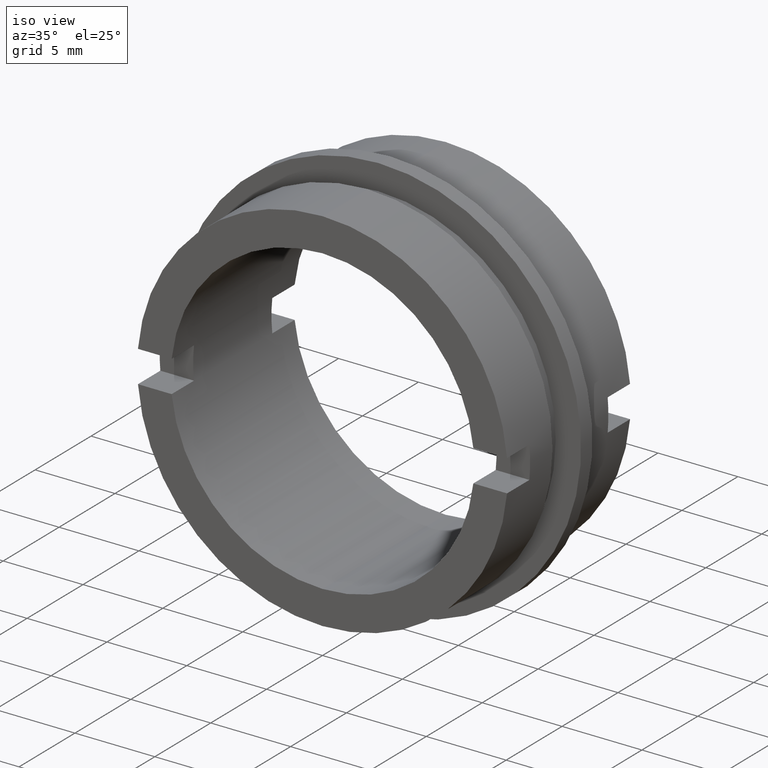
[diagram: clean part render]
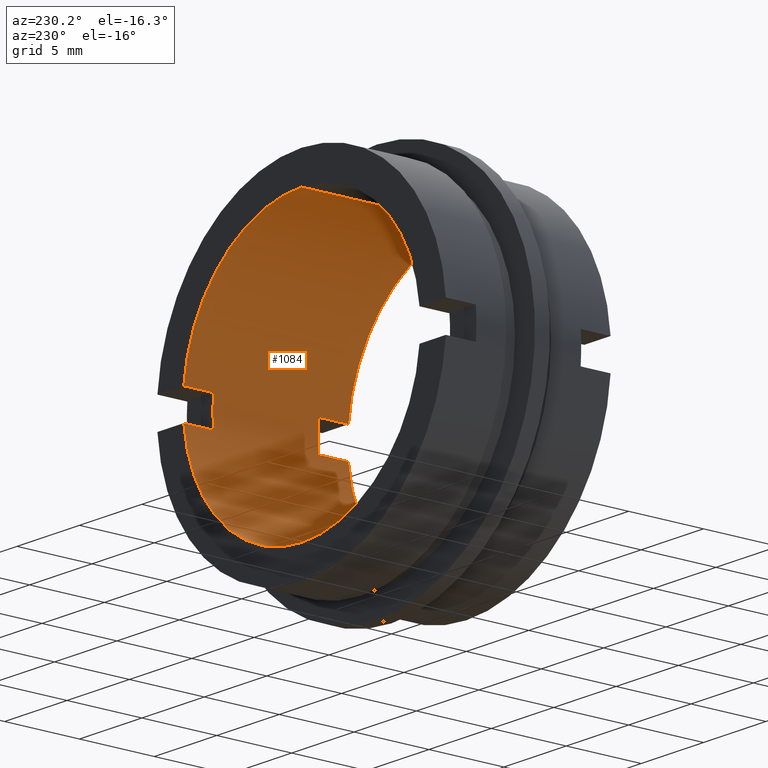
[diagram: tour spotlight — one face highlighted and labeled with its STEP entity id]
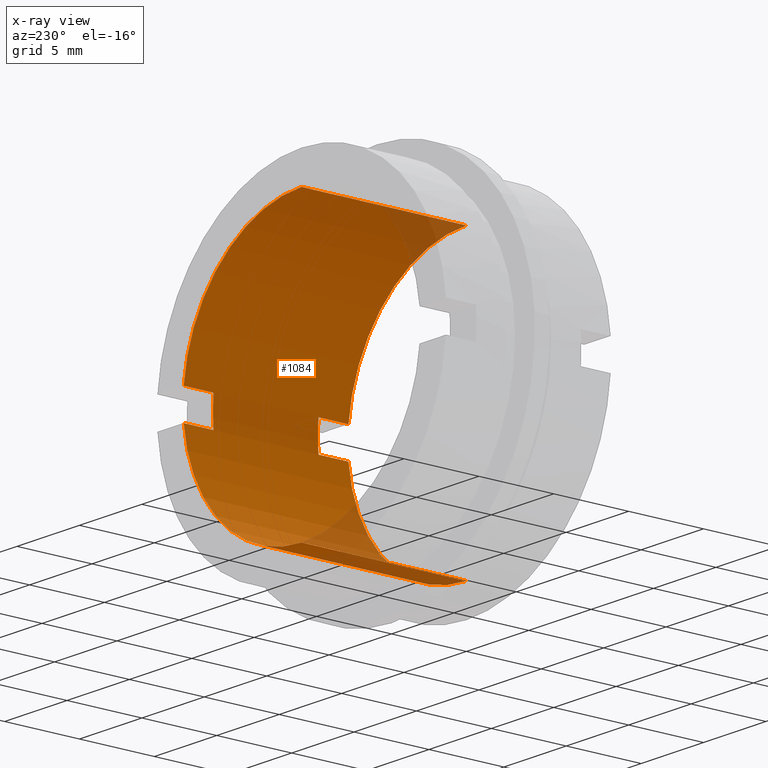
[diagram: x-ray of the same camera — body ghosted, this tour face saturated]
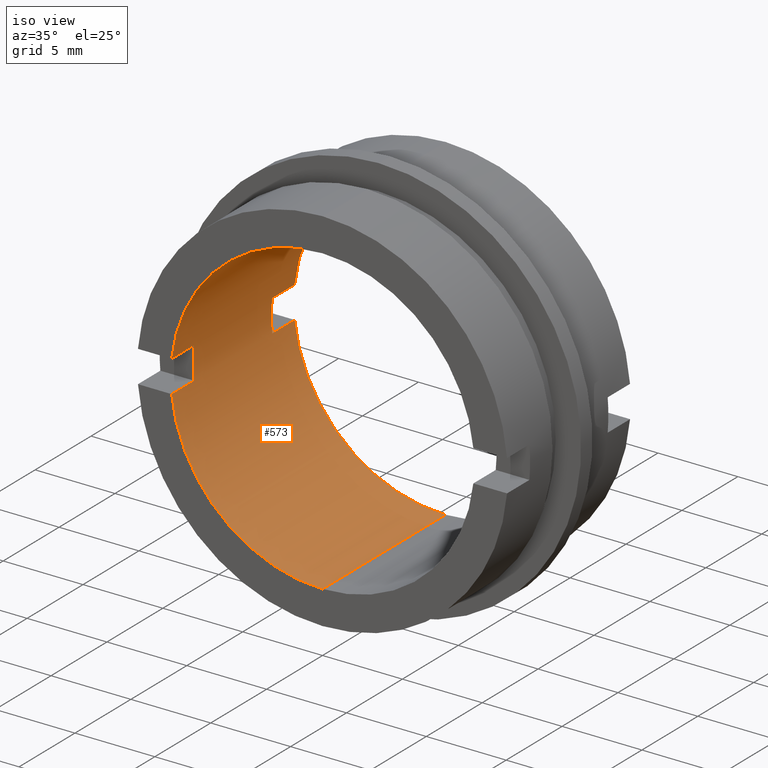
[diagram: tour spotlight — one face highlighted and labeled with its STEP entity id]
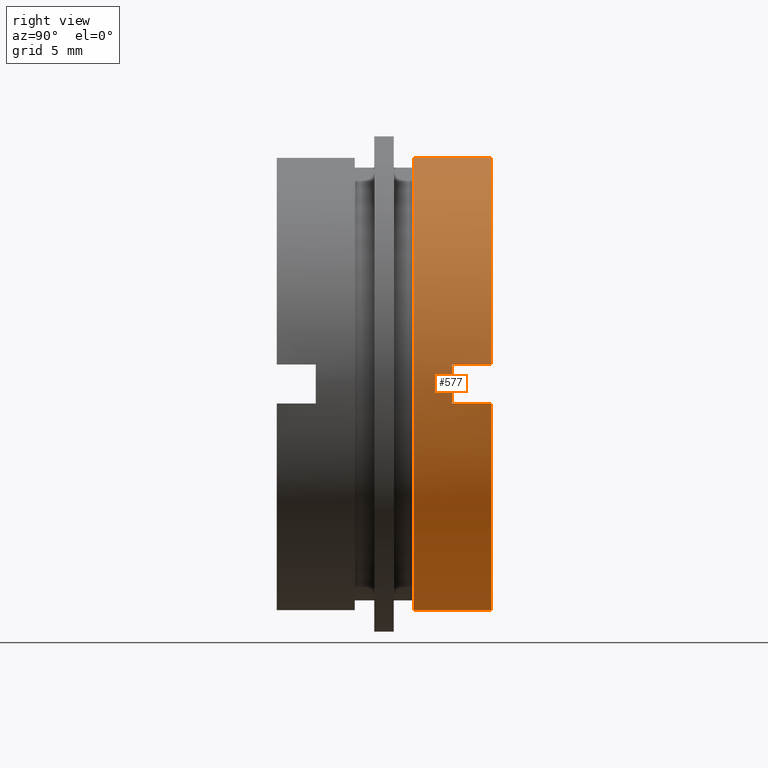
[diagram: tour spotlight — one face highlighted and labeled with its STEP entity id]
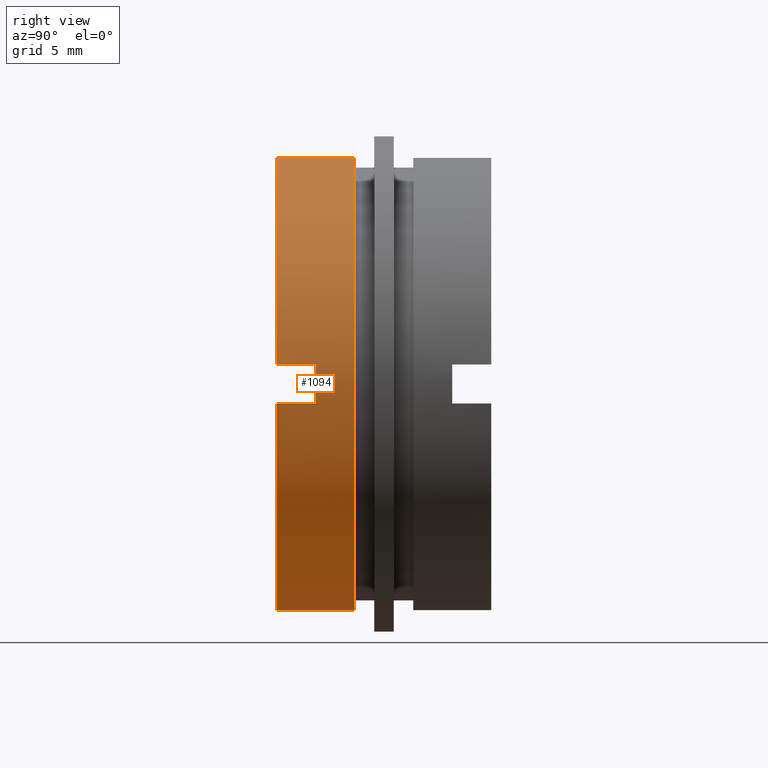
[diagram: tour spotlight — one face highlighted and labeled with its STEP entity id]
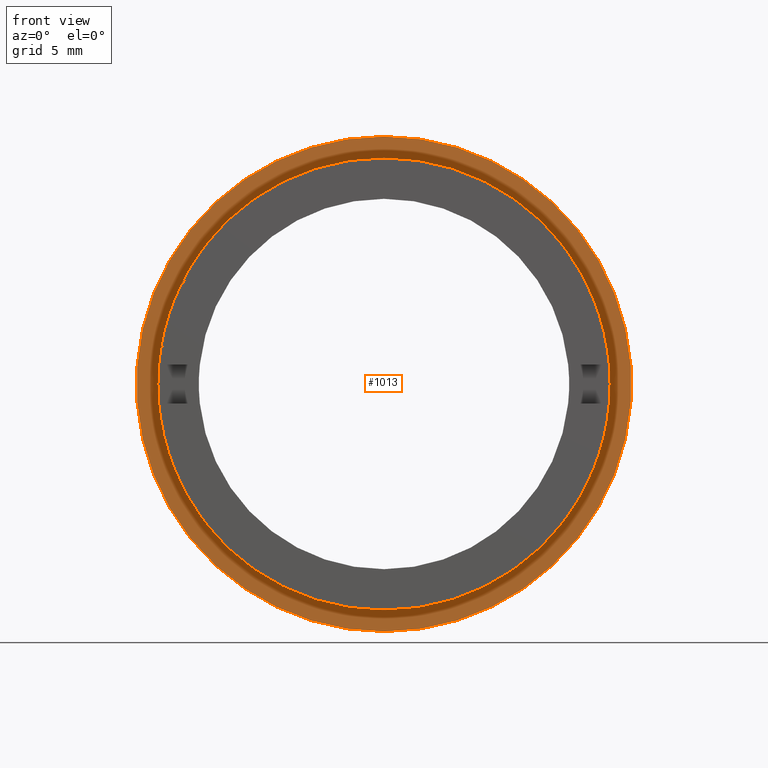
[diagram: tour spotlight — one face highlighted and labeled with its STEP entity id]
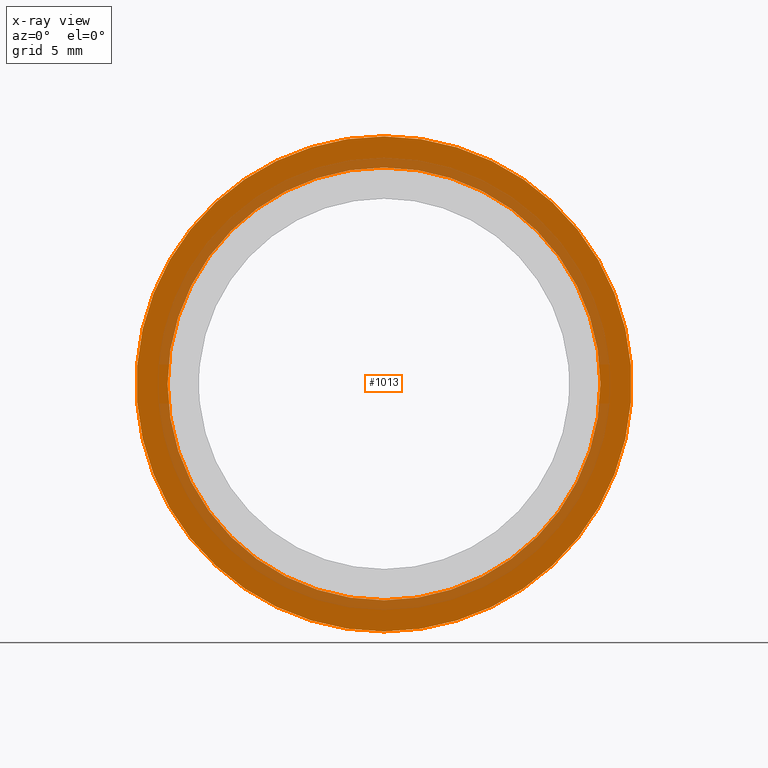
[diagram: x-ray of the same camera — body ghosted, this tour face saturated]
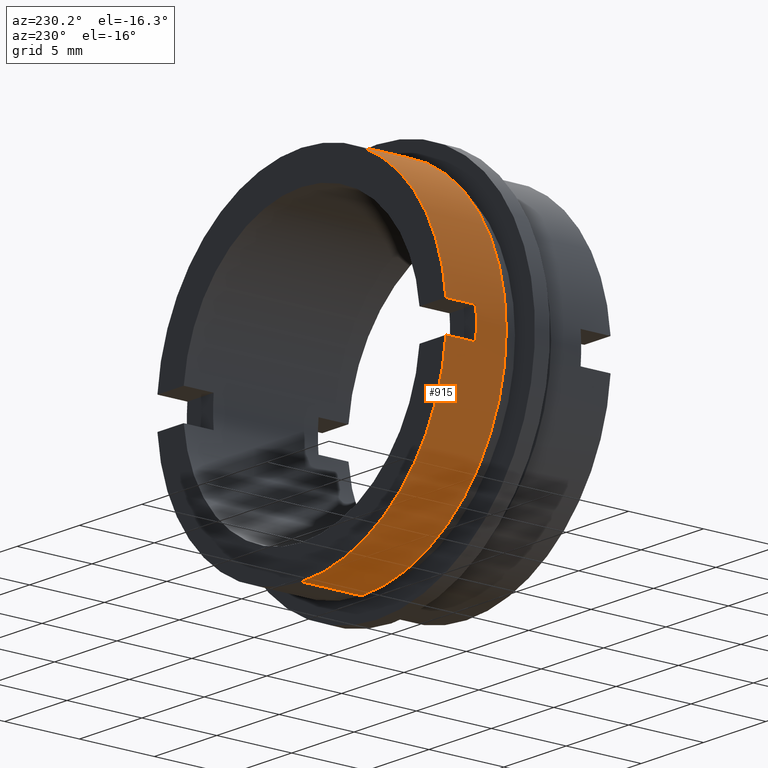
[diagram: tour spotlight — one face highlighted and labeled with its STEP entity id]
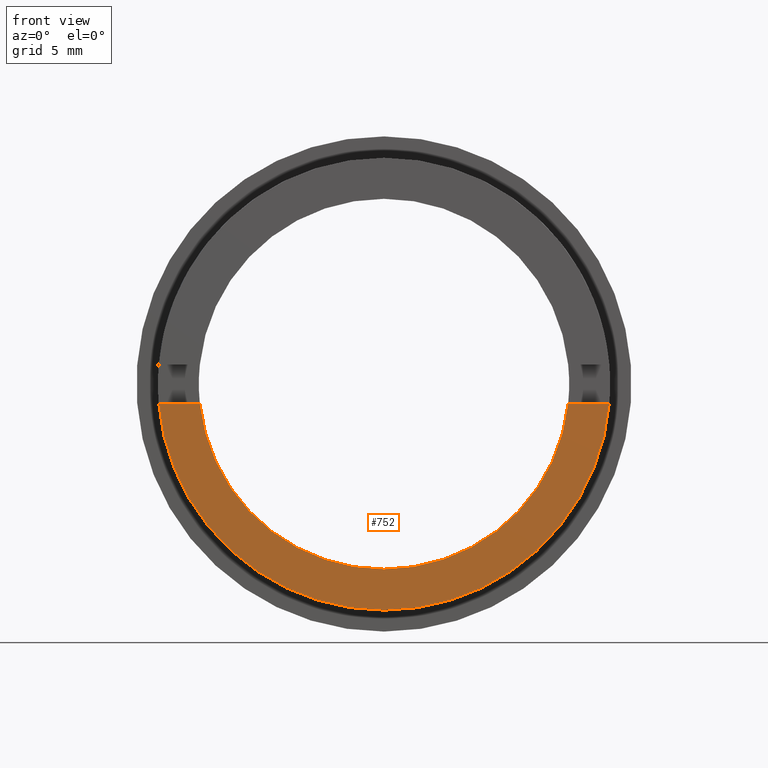
[diagram: tour spotlight — one face highlighted and labeled with its STEP entity id]
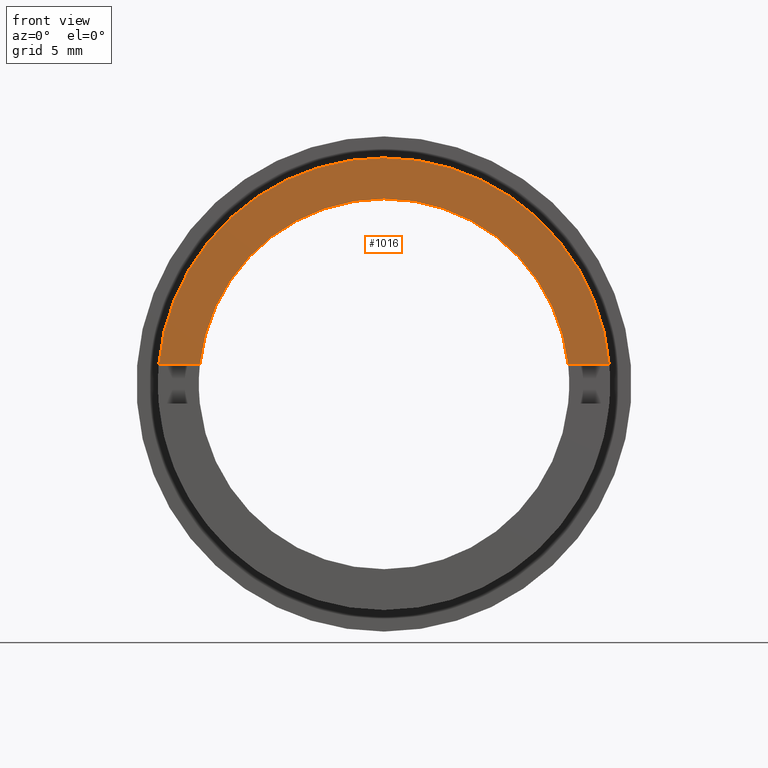
[diagram: tour spotlight — one face highlighted and labeled with its STEP entity id]
A machine part: a face-by-face anatomy tour. The part has 32 B-rep faces; the first image is the clean iso view, then the 8 largest visible faces are spotlighted one at a time (largest first), each with its STEP entity span.

Face 1 — auxiliary view, entity #1084. An x-ray twin of the same camera follows (body ghosted, this face saturated) — the face is partly hidden behind the body. In plain terms, the highlighted cylindrical surface (partial cylindrical patch) has radius 9.5 mm, axis along (-0, 1, -0).
Definition (entity closure, byte-faithful):
#31 = EDGE_CURVE ( 'NONE', #951, #895, #417, .T. ) ;
#42 = VECTOR ( 'NONE', #497, 1000.000000000000000 ) ;
#66 = VERTEX_POINT ( 'NONE', #755 ) ;
#82 = ORIENTED_EDGE ( 'NONE', *, *, #187, .T. ) ;
#98 = AXIS2_PLACEMENT_3D ( 'NONE', #392, #919, #839 ) ;
#101 = DIRECTION ( 'NONE',  ( -0.0000000000000000000, 1.000000000000000000, -0.0000000000000000000 ) ) ;
#105 = VERTEX_POINT ( 'NONE', #525 ) ;
#115 = VERTEX_POINT ( 'NONE', #1135 ) ;
#125 = CIRCLE ( 'NONE', #98, 9.499999999999996400 ) ;
#146 = VERTEX_POINT ( 'NONE', #275 ) ;
#152 = DIRECTION ( 'NONE',  ( 0.0000000000000000000, 0.0000000000000000000, 1.000000000000000000 ) ) ;
#155 = VECTOR ( 'NONE', #871, 1000.000000000000000 ) ;
#170 = VECTOR ( 'NONE', #1129, 1000.000000000000000 ) ;
#178 = VERTEX_POINT ( 'NONE', #680 ) ;
#183 = VECTOR ( 'NONE', #819, 1000.000000000000000 ) ;
#187 = EDGE_CURVE ( 'NONE', #295, #895, #792, .T. ) ;
#188 = CARTESIAN_POINT ( 'NONE',  ( 9.447221813845589000, 1.999999999999998200, 1.000000000000000200 ) ) ;
#208 = EDGE_CURVE ( 'NONE', #146, #490, #926, .T. ) ;
#234 = DIRECTION ( 'NONE',  ( -0.0000000000000000000, -1.000000000000000000, -0.0000000000000000000 ) ) ;
#242 = CARTESIAN_POINT ( 'NONE',  ( 0.0000000000000000000, 0.0000000000000000000, 0.0000000000000000000 ) ) ;
#247 = CARTESIAN_POINT ( 'NONE',  ( 1.163414459189985100E-015, 22.67749945107591400, -9.499999999999996400 ) ) ;
#248 = ORIENTED_EDGE ( 'NONE', *, *, #715, .F. ) ;
#264 = CARTESIAN_POINT ( 'NONE',  ( 9.447221813845587200, 2.000000000000000000, -0.9999999999999995600 ) ) ;
#272 = ORIENTED_EDGE ( 'NONE', *, *, #986, .F. ) ;
#275 = CARTESIAN_POINT ( 'NONE',  ( 9.447221813845589000, 0.0000000000000000000, 1.000000000000000000 ) ) ;
#280 = CARTESIAN_POINT ( 'NONE',  ( 9.447221813845589000, 22.67749945107591400, 1.000000000000003100 ) ) ;
#295 = VERTEX_POINT ( 'NONE', #1099 ) ;
#301 = AXIS2_PLACEMENT_3D ( 'NONE', #987, #365, #899 ) ;
#311 = EDGE_LOOP ( 'NONE', ( #390, #248, #649, #764, #517, #376, #646, #1133, #809, #780, #272, #82 ) ) ;
#318 = CARTESIAN_POINT ( 'NONE',  ( 0.0000000000000000000, 22.67749945107591400, 0.0000000000000000000 ) ) ;
#321 = FACE_OUTER_BOUND ( 'NONE', #311, .T. ) ;
#365 = DIRECTION ( 'NONE',  ( -0.0000000000000000000, 1.000000000000000000, -0.0000000000000000000 ) ) ;
#370 = DIRECTION ( 'NONE',  ( -0.0000000000000000000, 1.000000000000000000, -0.0000000000000000000 ) ) ;
#376 = ORIENTED_EDGE ( 'NONE', *, *, #505, .F. ) ;
#390 = ORIENTED_EDGE ( 'NONE', *, *, #31, .F. ) ;
#392 = CARTESIAN_POINT ( 'NONE',  ( 0.0000000000000000000, 1.999999999999998200, 0.0000000000000000000 ) ) ;
#399 = VECTOR ( 'NONE', #413, 1000.000000000000000 ) ;
#408 = DIRECTION ( 'NONE',  ( 0.0000000000000000000, 0.0000000000000000000, 1.000000000000000000 ) ) ;
#413 = DIRECTION ( 'NONE',  ( 0.0000000000000000000, -1.000000000000000000, 0.0000000000000000000 ) ) ;
#414 = AXIS2_PLACEMENT_3D ( 'NONE', #724, #101, #632 ) ;
#417 = LINE ( 'NONE', #247, #155 ) ;
#418 = CIRCLE ( 'NONE', #414, 9.499999999999996400 ) ;
#427 = CARTESIAN_POINT ( 'NONE',  ( 1.163414459189985100E-015, 11.00000000000000000, -9.499999999999996400 ) ) ;
#468 = EDGE_CURVE ( 'NONE', #178, #784, #476, .T. ) ;
#476 = LINE ( 'NONE', #998, #914 ) ;
#482 = AXIS2_PLACEMENT_3D ( 'NONE', #501, #1031, #408 ) ;
#490 = VERTEX_POINT ( 'NONE', #188 ) ;
#497 = DIRECTION ( 'NONE',  ( -0.0000000000000000000, 1.000000000000000000, -0.0000000000000000000 ) ) ;
#501 = CARTESIAN_POINT ( 'NONE',  ( 0.0000000000000000000, 11.00000000000000000, 0.0000000000000000000 ) ) ;
#505 = EDGE_CURVE ( 'NONE', #178, #146, #659, .T. ) ;
#511 = VERTEX_POINT ( 'NONE', #901 ) ;
#514 = CARTESIAN_POINT ( 'NONE',  ( 9.447221813845589000, 22.67749945107591400, -1.000000000000000000 ) ) ;
#516 = EDGE_CURVE ( 'NONE', #66, #105, #1124, .T. ) ;
#517 = ORIENTED_EDGE ( 'NONE', *, *, #208, .F. ) ;
#525 = CARTESIAN_POINT ( 'NONE',  ( 9.447221813845589000, 11.00000000000000000, 1.000000000000001300 ) ) ;
#548 = EDGE_CURVE ( 'NONE', #784, #105, #418, .T. ) ;
#632 = DIRECTION ( 'NONE',  ( 0.0000000000000000000, 0.0000000000000000000, 1.000000000000000000 ) ) ;
#637 = VERTEX_POINT ( 'NONE', #264 ) ;
#646 = ORIENTED_EDGE ( 'NONE', *, *, #468, .T. ) ;
#649 = ORIENTED_EDGE ( 'NONE', *, *, #942, .F. ) ;
#659 = CIRCLE ( 'NONE', #301, 9.499999999999996400 ) ;
#680 = CARTESIAN_POINT ( 'NONE',  ( 0.0000000000000000000, 0.0000000000000000000, 9.499999999999996400 ) ) ;
#715 = EDGE_CURVE ( 'NONE', #511, #951, #1032, .T. ) ;
#724 = CARTESIAN_POINT ( 'NONE',  ( 0.0000000000000000000, 11.00000000000000000, 0.0000000000000000000 ) ) ;
#755 = CARTESIAN_POINT ( 'NONE',  ( 9.447221813845589000, 9.000000000000000000, 1.000000000000001100 ) ) ;
#757 = EDGE_CURVE ( 'NONE', #115, #66, #779, .T. ) ;
#760 = AXIS2_PLACEMENT_3D ( 'NONE', #242, #788, #152 ) ;
#764 = ORIENTED_EDGE ( 'NONE', *, *, #1120, .F. ) ;
#774 = DIRECTION ( 'NONE',  ( 0.0000000000000000000, 0.0000000000000000000, -1.000000000000000000 ) ) ;
#779 = CIRCLE ( 'NONE', #992, 9.499999999999996400 ) ;
#780 = ORIENTED_EDGE ( 'NONE', *, *, #757, .F. ) ;
#784 = VERTEX_POINT ( 'NONE', #1028 ) ;
#788 = DIRECTION ( 'NONE',  ( -0.0000000000000000000, 1.000000000000000000, -0.0000000000000000000 ) ) ;
#792 = CIRCLE ( 'NONE', #482, 9.499999999999996400 ) ;
#809 = ORIENTED_EDGE ( 'NONE', *, *, #516, .F. ) ;
#819 = DIRECTION ( 'NONE',  ( -0.0000000000000000000, 1.000000000000000000, -0.0000000000000000000 ) ) ;
#839 = DIRECTION ( 'NONE',  ( 0.0000000000000000000, 0.0000000000000000000, 1.000000000000000000 ) ) ;
#848 = CARTESIAN_POINT ( 'NONE',  ( 1.163414459189985100E-015, 0.0000000000000000000, -9.499999999999996400 ) ) ;
#856 = DIRECTION ( 'NONE',  ( -0.0000000000000000000, 1.000000000000000000, -0.0000000000000000000 ) ) ;
#859 = CARTESIAN_POINT ( 'NONE',  ( 0.0000000000000000000, 9.000000000000000000, 0.0000000000000000000 ) ) ;
#871 = DIRECTION ( 'NONE',  ( -0.0000000000000000000, 1.000000000000000000, -0.0000000000000000000 ) ) ;
#876 = LINE ( 'NONE', #904, #170 ) ;
#888 = AXIS2_PLACEMENT_3D ( 'NONE', #318, #856, #1101 ) ;
#891 = CYLINDRICAL_SURFACE ( 'NONE', #888, 9.499999999999996400 ) ;
#895 = VERTEX_POINT ( 'NONE', #427 ) ;
#899 = DIRECTION ( 'NONE',  ( 0.0000000000000000000, 0.0000000000000000000, 1.000000000000000000 ) ) ;
#901 = CARTESIAN_POINT ( 'NONE',  ( 9.447221813845589000, 0.0000000000000000000, -1.000000000000000000 ) ) ;
#904 = CARTESIAN_POINT ( 'NONE',  ( 9.447221813845587200, 22.67749945107591400, -0.9999999999999943400 ) ) ;
#914 = VECTOR ( 'NONE', #370, 1000.000000000000000 ) ;
#919 = DIRECTION ( 'NONE',  ( 0.0000000000000000000, 1.000000000000000000, 0.0000000000000000000 ) ) ;
#926 = LINE ( 'NONE', #1110, #42 ) ;
#942 = EDGE_CURVE ( 'NONE', #637, #511, #876, .T. ) ;
#951 = VERTEX_POINT ( 'NONE', #848 ) ;
#986 = EDGE_CURVE ( 'NONE', #295, #115, #1105, .T. ) ;
#987 = CARTESIAN_POINT ( 'NONE',  ( 0.0000000000000000000, 0.0000000000000000000, 0.0000000000000000000 ) ) ;
#992 = AXIS2_PLACEMENT_3D ( 'NONE', #859, #234, #774 ) ;
#998 = CARTESIAN_POINT ( 'NONE',  ( 0.0000000000000000000, 22.67749945107591400, 9.499999999999996400 ) ) ;
#1028 = CARTESIAN_POINT ( 'NONE',  ( 0.0000000000000000000, 11.00000000000000000, 9.499999999999996400 ) ) ;
#1031 = DIRECTION ( 'NONE',  ( -0.0000000000000000000, 1.000000000000000000, -0.0000000000000000000 ) ) ;
#1032 = CIRCLE ( 'NONE', #760, 9.499999999999996400 ) ;
#1084 = ADVANCED_FACE ( 'NONE', ( #321 ), #891, .F. ) ;
#1099 = CARTESIAN_POINT ( 'NONE',  ( 9.447221813845589000, 11.00000000000000000, -0.9999999999999978900 ) ) ;
#1101 = DIRECTION ( 'NONE',  ( 0.0000000000000000000, 0.0000000000000000000, 1.000000000000000000 ) ) ;
#1105 = LINE ( 'NONE', #514, #399 ) ;
#1110 = CARTESIAN_POINT ( 'NONE',  ( 9.447221813845589000, 22.67749945107591400, 1.000000000000003800 ) ) ;
#1120 = EDGE_CURVE ( 'NONE', #490, #637, #125, .T. ) ;
#1124 = LINE ( 'NONE', #280, #183 ) ;
#1129 = DIRECTION ( 'NONE',  ( 0.0000000000000000000, -1.000000000000000000, 0.0000000000000000000 ) ) ;
#1133 = ORIENTED_EDGE ( 'NONE', *, *, #548, .T. ) ;
#1135 = CARTESIAN_POINT ( 'NONE',  ( 9.447221813845589000, 9.000000000000000000, -0.9999999999999974500 ) ) ;

Face 2 — iso view, entity #573. In plain terms, the highlighted cylindrical surface (partial cylindrical patch) has radius 9.5 mm, axis along (-0, 1, -0).
Definition (entity closure, byte-faithful):
#3 = DIRECTION ( 'NONE',  ( 0.0000000000000000000, -1.000000000000000000, 0.0000000000000000000 ) ) ;
#31 = EDGE_CURVE ( 'NONE', #951, #895, #417, .T. ) ;
#45 = VERTEX_POINT ( 'NONE', #521 ) ;
#63 = ORIENTED_EDGE ( 'NONE', *, *, #468, .F. ) ;
#79 = LINE ( 'NONE', #1147, #817 ) ;
#85 = CARTESIAN_POINT ( 'NONE',  ( 0.0000000000000000000, 9.000000000000000000, 0.0000000000000000000 ) ) ;
#111 = DIRECTION ( 'NONE',  ( 0.0000000000000000000, 0.0000000000000000000, 1.000000000000000000 ) ) ;
#114 = VECTOR ( 'NONE', #1127, 1000.000000000000000 ) ;
#132 = EDGE_CURVE ( 'NONE', #461, #262, #79, .T. ) ;
#134 = DIRECTION ( 'NONE',  ( -0.0000000000000000000, 1.000000000000000000, -0.0000000000000000000 ) ) ;
#142 = ORIENTED_EDGE ( 'NONE', *, *, #276, .F. ) ;
#155 = VECTOR ( 'NONE', #871, 1000.000000000000000 ) ;
#157 = ORIENTED_EDGE ( 'NONE', *, *, #683, .F. ) ;
#172 = ORIENTED_EDGE ( 'NONE', *, *, #628, .F. ) ;
#178 = VERTEX_POINT ( 'NONE', #680 ) ;
#185 = DIRECTION ( 'NONE',  ( -0.0000000000000000000, 1.000000000000000000, -0.0000000000000000000 ) ) ;
#189 = AXIS2_PLACEMENT_3D ( 'NONE', #291, #860, #331 ) ;
#196 = ORIENTED_EDGE ( 'NONE', *, *, #833, .F. ) ;
#197 = CARTESIAN_POINT ( 'NONE',  ( 0.0000000000000000000, 11.00000000000000000, 0.0000000000000000000 ) ) ;
#200 = EDGE_CURVE ( 'NONE', #895, #928, #729, .T. ) ;
#204 = CIRCLE ( 'NONE', #189, 9.499999999999996400 ) ;
#233 = DIRECTION ( 'NONE',  ( 0.0000000000000000000, 0.0000000000000000000, 1.000000000000000000 ) ) ;
#243 = CIRCLE ( 'NONE', #703, 9.499999999999996400 ) ;
#246 = CARTESIAN_POINT ( 'NONE',  ( 0.0000000000000000000, 0.0000000000000000000, 0.0000000000000000000 ) ) ;
#247 = CARTESIAN_POINT ( 'NONE',  ( 1.163414459189985100E-015, 22.67749945107591400, -9.499999999999996400 ) ) ;
#260 = VECTOR ( 'NONE', #134, 1000.000000000000000 ) ;
#262 = VERTEX_POINT ( 'NONE', #493 ) ;
#274 = CARTESIAN_POINT ( 'NONE',  ( 0.0000000000000000000, 22.67749945107591400, 0.0000000000000000000 ) ) ;
#276 = EDGE_CURVE ( 'NONE', #973, #928, #491, .T. ) ;
#283 = CYLINDRICAL_SURFACE ( 'NONE', #948, 9.499999999999996400 ) ;
#284 = ORIENTED_EDGE ( 'NONE', *, *, #31, .T. ) ;
#287 = VERTEX_POINT ( 'NONE', #767 ) ;
#291 = CARTESIAN_POINT ( 'NONE',  ( 0.0000000000000000000, 0.0000000000000000000, 0.0000000000000000000 ) ) ;
#315 = CARTESIAN_POINT ( 'NONE',  ( -9.447221813845589000, 22.67749945107591400, 1.000000000000003100 ) ) ;
#319 = CARTESIAN_POINT ( 'NONE',  ( 0.0000000000000000000, 11.00000000000000000, 0.0000000000000000000 ) ) ;
#331 = DIRECTION ( 'NONE',  ( 0.0000000000000000000, 0.0000000000000000000, 1.000000000000000000 ) ) ;
#358 = VERTEX_POINT ( 'NONE', #481 ) ;
#370 = DIRECTION ( 'NONE',  ( -0.0000000000000000000, 1.000000000000000000, -0.0000000000000000000 ) ) ;
#417 = LINE ( 'NONE', #247, #155 ) ;
#419 = EDGE_LOOP ( 'NONE', ( #196, #284, #753, #142, #172, #775, #1058, #63, #945, #765, #479, #157 ) ) ;
#427 = CARTESIAN_POINT ( 'NONE',  ( 1.163414459189985100E-015, 11.00000000000000000, -9.499999999999996400 ) ) ;
#443 = VERTEX_POINT ( 'NONE', #740 ) ;
#445 = EDGE_CURVE ( 'NONE', #443, #784, #243, .T. ) ;
#461 = VERTEX_POINT ( 'NONE', #822 ) ;
#468 = EDGE_CURVE ( 'NONE', #178, #784, #476, .T. ) ;
#476 = LINE ( 'NONE', #998, #914 ) ;
#479 = ORIENTED_EDGE ( 'NONE', *, *, #884, .F. ) ;
#481 = CARTESIAN_POINT ( 'NONE',  ( -9.447221813845589000, 0.0000000000000000000, -1.000000000000000000 ) ) ;
#491 = LINE ( 'NONE', #927, #260 ) ;
#493 = CARTESIAN_POINT ( 'NONE',  ( -9.447221813845589000, 0.0000000000000000000, 1.000000000000000000 ) ) ;
#494 = AXIS2_PLACEMENT_3D ( 'NONE', #246, #693, #695 ) ;
#506 = LINE ( 'NONE', #315, #686 ) ;
#510 = DIRECTION ( 'NONE',  ( 0.0000000000000000000, -1.000000000000000000, 0.0000000000000000000 ) ) ;
#519 = DIRECTION ( 'NONE',  ( 0.0000000000000000000, 0.0000000000000000000, 1.000000000000000000 ) ) ;
#521 = CARTESIAN_POINT ( 'NONE',  ( -9.447221813845589000, 9.000000000000000000, 1.000000000000001100 ) ) ;
#573 = ADVANCED_FACE ( 'NONE', ( #1068 ), #283, .F. ) ;
#610 = CARTESIAN_POINT ( 'NONE',  ( 0.0000000000000000000, 1.999999999999998200, 0.0000000000000000000 ) ) ;
#615 = DIRECTION ( 'NONE',  ( -0.0000000000000000000, -1.000000000000000000, -0.0000000000000000000 ) ) ;
#628 = EDGE_CURVE ( 'NONE', #45, #973, #1106, .T. ) ;
#680 = CARTESIAN_POINT ( 'NONE',  ( 0.0000000000000000000, 0.0000000000000000000, 9.499999999999996400 ) ) ;
#683 = EDGE_CURVE ( 'NONE', #358, #287, #825, .T. ) ;
#686 = VECTOR ( 'NONE', #510, 1000.000000000000000 ) ;
#693 = DIRECTION ( 'NONE',  ( -0.0000000000000000000, 1.000000000000000000, -0.0000000000000000000 ) ) ;
#695 = DIRECTION ( 'NONE',  ( 0.0000000000000000000, 0.0000000000000000000, 1.000000000000000000 ) ) ;
#703 = AXIS2_PLACEMENT_3D ( 'NONE', #197, #737, #111 ) ;
#725 = AXIS2_PLACEMENT_3D ( 'NONE', #319, #857, #233 ) ;
#729 = CIRCLE ( 'NONE', #725, 9.499999999999996400 ) ;
#737 = DIRECTION ( 'NONE',  ( -0.0000000000000000000, 1.000000000000000000, -0.0000000000000000000 ) ) ;
#739 = CARTESIAN_POINT ( 'NONE',  ( -9.447221813845589000, 9.000000000000000000, -0.9999999999999974500 ) ) ;
#740 = CARTESIAN_POINT ( 'NONE',  ( -9.447221813845589000, 11.00000000000000000, 1.000000000000001300 ) ) ;
#753 = ORIENTED_EDGE ( 'NONE', *, *, #200, .T. ) ;
#765 = ORIENTED_EDGE ( 'NONE', *, *, #132, .F. ) ;
#767 = CARTESIAN_POINT ( 'NONE',  ( -9.447221813845587200, 2.000000000000000000, -0.9999999999999995600 ) ) ;
#775 = ORIENTED_EDGE ( 'NONE', *, *, #824, .F. ) ;
#784 = VERTEX_POINT ( 'NONE', #1028 ) ;
#790 = CARTESIAN_POINT ( 'NONE',  ( -9.447221813845587200, 22.67749945107591400, -0.9999999999999943400 ) ) ;
#800 = AXIS2_PLACEMENT_3D ( 'NONE', #610, #950, #519 ) ;
#817 = VECTOR ( 'NONE', #3, 1000.000000000000000 ) ;
#822 = CARTESIAN_POINT ( 'NONE',  ( -9.447221813845589000, 1.999999999999998200, 1.000000000000000200 ) ) ;
#824 = EDGE_CURVE ( 'NONE', #443, #45, #506, .T. ) ;
#825 = LINE ( 'NONE', #790, #114 ) ;
#833 = EDGE_CURVE ( 'NONE', #951, #358, #204, .T. ) ;
#847 = EDGE_CURVE ( 'NONE', #262, #178, #1122, .T. ) ;
#848 = CARTESIAN_POINT ( 'NONE',  ( 1.163414459189985100E-015, 0.0000000000000000000, -9.499999999999996400 ) ) ;
#857 = DIRECTION ( 'NONE',  ( -0.0000000000000000000, 1.000000000000000000, -0.0000000000000000000 ) ) ;
#860 = DIRECTION ( 'NONE',  ( -0.0000000000000000000, 1.000000000000000000, -0.0000000000000000000 ) ) ;
#871 = DIRECTION ( 'NONE',  ( -0.0000000000000000000, 1.000000000000000000, -0.0000000000000000000 ) ) ;
#884 = EDGE_CURVE ( 'NONE', #287, #461, #1020, .T. ) ;
#889 = DIRECTION ( 'NONE',  ( 0.0000000000000000000, 0.0000000000000000000, 1.000000000000000000 ) ) ;
#895 = VERTEX_POINT ( 'NONE', #427 ) ;
#914 = VECTOR ( 'NONE', #370, 1000.000000000000000 ) ;
#927 = CARTESIAN_POINT ( 'NONE',  ( -9.447221813845589000, 22.67749945107591400, -1.000000000000000000 ) ) ;
#928 = VERTEX_POINT ( 'NONE', #932 ) ;
#932 = CARTESIAN_POINT ( 'NONE',  ( -9.447221813845589000, 11.00000000000000000, -0.9999999999999978900 ) ) ;
#945 = ORIENTED_EDGE ( 'NONE', *, *, #847, .F. ) ;
#948 = AXIS2_PLACEMENT_3D ( 'NONE', #274, #185, #889 ) ;
#950 = DIRECTION ( 'NONE',  ( 0.0000000000000000000, 1.000000000000000000, 0.0000000000000000000 ) ) ;
#951 = VERTEX_POINT ( 'NONE', #848 ) ;
#973 = VERTEX_POINT ( 'NONE', #739 ) ;
#998 = CARTESIAN_POINT ( 'NONE',  ( 0.0000000000000000000, 22.67749945107591400, 9.499999999999996400 ) ) ;
#1020 = CIRCLE ( 'NONE', #800, 9.499999999999996400 ) ;
#1028 = CARTESIAN_POINT ( 'NONE',  ( 0.0000000000000000000, 11.00000000000000000, 9.499999999999996400 ) ) ;
#1058 = ORIENTED_EDGE ( 'NONE', *, *, #445, .T. ) ;
#1068 = FACE_OUTER_BOUND ( 'NONE', #419, .T. ) ;
#1106 = CIRCLE ( 'NONE', #1126, 9.499999999999996400 ) ;
#1122 = CIRCLE ( 'NONE', #494, 9.499999999999996400 ) ;
#1126 = AXIS2_PLACEMENT_3D ( 'NONE', #85, #615, #1137 ) ;
#1127 = DIRECTION ( 'NONE',  ( -0.0000000000000000000, 1.000000000000000000, -0.0000000000000000000 ) ) ;
#1137 = DIRECTION ( 'NONE',  ( 0.0000000000000000000, 0.0000000000000000000, -1.000000000000000000 ) ) ;
#1147 = CARTESIAN_POINT ( 'NONE',  ( -9.447221813845589000, 22.67749945107591400, 1.000000000000003800 ) ) ;

Face 3 — right view, entity #577. In plain terms, the highlighted cylindrical surface (partial cylindrical patch) has radius 11.6 mm, axis along (-0, 1, -0).
Definition (entity closure, byte-faithful):
#10 = VERTEX_POINT ( 'NONE', #618 ) ;
#12 = DIRECTION ( 'NONE',  ( 1.243449787580175200E-014, 0.0000000000000000000, -1.000000000000000000 ) ) ;
#24 = CIRCLE ( 'NONE', #1100, 11.59999999999999800 ) ;
#56 = CARTESIAN_POINT ( 'NONE',  ( 11.55681617055493000, 11.00000000000000000, -1.000000000000000000 ) ) ;
#57 = CARTESIAN_POINT ( 'NONE',  ( 11.55681617055493000, 9.000000000000000000, 1.000000000000001100 ) ) ;
#59 = ORIENTED_EDGE ( 'NONE', *, *, #816, .T. ) ;
#71 = DIRECTION ( 'NONE',  ( -0.0000000000000000000, 1.000000000000000000, -0.0000000000000000000 ) ) ;
#77 = CARTESIAN_POINT ( 'NONE',  ( 1.420590287010929300E-015, 11.00000000000000000, -11.59999999999999800 ) ) ;
#103 = AXIS2_PLACEMENT_3D ( 'NONE', #810, #177, #1053 ) ;
#108 = CARTESIAN_POINT ( 'NONE',  ( 0.0000000000000000000, 9.000000000000000000, 0.0000000000000000000 ) ) ;
#118 = ORIENTED_EDGE ( 'NONE', *, *, #921, .T. ) ;
#153 = EDGE_CURVE ( 'NONE', #748, #787, #306, .T. ) ;
#169 = EDGE_CURVE ( 'NONE', #592, #1034, #524, .T. ) ;
#177 = DIRECTION ( 'NONE',  ( -0.0000000000000000000, 1.000000000000000000, -0.0000000000000000000 ) ) ;
#198 = DIRECTION ( 'NONE',  ( -0.0000000000000000000, 1.000000000000000000, -0.0000000000000000000 ) ) ;
#216 = DIRECTION ( 'NONE',  ( -0.0000000000000000000, 1.000000000000000000, -0.0000000000000000000 ) ) ;
#265 = CARTESIAN_POINT ( 'NONE',  ( 1.420590287010929300E-015, 22.67749945107591400, -11.59999999999999800 ) ) ;
#282 = VECTOR ( 'NONE', #1065, 1000.000000000000000 ) ;
#293 = VECTOR ( 'NONE', #1026, 1000.000000000000000 ) ;
#306 = LINE ( 'NONE', #549, #282 ) ;
#330 = CARTESIAN_POINT ( 'NONE',  ( 11.55681617055493000, 9.000000000000000000, -0.9999999999999974500 ) ) ;
#336 = DIRECTION ( 'NONE',  ( -0.0000000000000000000, 1.000000000000000000, -0.0000000000000000000 ) ) ;
#350 = CARTESIAN_POINT ( 'NONE',  ( 11.55681617055493000, 11.00000000000000000, 1.000000000000003100 ) ) ;
#372 = CARTESIAN_POINT ( 'NONE',  ( 0.0000000000000000000, 6.999999999999999100, 0.0000000000000000000 ) ) ;
#423 = CARTESIAN_POINT ( 'NONE',  ( 0.0000000000000000000, 11.00000000000000000, 11.59999999999999800 ) ) ;
#437 = VECTOR ( 'NONE', #336, 1000.000000000000000 ) ;
#459 = EDGE_LOOP ( 'NONE', ( #59, #118, #742, #477, #529, #1023, #1069, #983 ) ) ;
#477 = ORIENTED_EDGE ( 'NONE', *, *, #153, .F. ) ;
#488 = EDGE_CURVE ( 'NONE', #1034, #748, #688, .T. ) ;
#520 = VERTEX_POINT ( 'NONE', #728 ) ;
#524 = LINE ( 'NONE', #936, #960 ) ;
#529 = ORIENTED_EDGE ( 'NONE', *, *, #488, .F. ) ;
#537 = LINE ( 'NONE', #677, #293 ) ;
#549 = CARTESIAN_POINT ( 'NONE',  ( 11.55681617055493000, 22.67749945107591400, -1.000000000000000000 ) ) ;
#577 = ADVANCED_FACE ( 'NONE', ( #990 ), #645, .T. ) ;
#591 = CIRCLE ( 'NONE', #640, 11.59999999999999800 ) ;
#592 = VERTEX_POINT ( 'NONE', #350 ) ;
#604 = DIRECTION ( 'NONE',  ( 0.0000000000000000000, 0.0000000000000000000, 1.000000000000000000 ) ) ;
#618 = CARTESIAN_POINT ( 'NONE',  ( 0.0000000000000000000, 6.999999999999999100, 11.59999999999999800 ) ) ;
#640 = AXIS2_PLACEMENT_3D ( 'NONE', #692, #71, #604 ) ;
#641 = DIRECTION ( 'NONE',  ( 0.0000000000000000000, 1.000000000000000000, 0.0000000000000000000 ) ) ;
#645 = CYLINDRICAL_SURFACE ( 'NONE', #103, 11.59999999999999800 ) ;
#677 = CARTESIAN_POINT ( 'NONE',  ( 0.0000000000000000000, 22.67749945107591400, 11.59999999999999800 ) ) ;
#688 = CIRCLE ( 'NONE', #929, 11.59999999999999800 ) ;
#692 = CARTESIAN_POINT ( 'NONE',  ( 0.0000000000000000000, 11.00000000000000000, 0.0000000000000000000 ) ) ;
#694 = EDGE_CURVE ( 'NONE', #916, #592, #591, .T. ) ;
#728 = CARTESIAN_POINT ( 'NONE',  ( 1.420590287010929300E-015, 6.999999999999999100, -11.59999999999999800 ) ) ;
#742 = ORIENTED_EDGE ( 'NONE', *, *, #1097, .F. ) ;
#748 = VERTEX_POINT ( 'NONE', #330 ) ;
#758 = DIRECTION ( 'NONE',  ( 0.0000000000000000000, 0.0000000000000000000, 1.000000000000000000 ) ) ;
#778 = DIRECTION ( 'NONE',  ( 0.0000000000000000000, -1.000000000000000000, 0.0000000000000000000 ) ) ;
#787 = VERTEX_POINT ( 'NONE', #56 ) ;
#810 = CARTESIAN_POINT ( 'NONE',  ( 0.0000000000000000000, 22.67749945107591400, 0.0000000000000000000 ) ) ;
#815 = CIRCLE ( 'NONE', #1117, 11.59999999999999800 ) ;
#816 = EDGE_CURVE ( 'NONE', #10, #520, #24, .T. ) ;
#843 = CARTESIAN_POINT ( 'NONE',  ( 0.0000000000000000000, 11.00000000000000000, 0.0000000000000000000 ) ) ;
#903 = LINE ( 'NONE', #265, #437 ) ;
#916 = VERTEX_POINT ( 'NONE', #423 ) ;
#921 = EDGE_CURVE ( 'NONE', #520, #941, #903, .T. ) ;
#929 = AXIS2_PLACEMENT_3D ( 'NONE', #108, #641, #12 ) ;
#936 = CARTESIAN_POINT ( 'NONE',  ( 11.55681617055493000, 22.67749945107591400, 1.000000000000003100 ) ) ;
#939 = DIRECTION ( 'NONE',  ( 0.0000000000000000000, 0.0000000000000000000, 1.000000000000000000 ) ) ;
#941 = VERTEX_POINT ( 'NONE', #77 ) ;
#960 = VECTOR ( 'NONE', #778, 1000.000000000000000 ) ;
#983 = ORIENTED_EDGE ( 'NONE', *, *, #1073, .F. ) ;
#990 = FACE_OUTER_BOUND ( 'NONE', #459, .T. ) ;
#1023 = ORIENTED_EDGE ( 'NONE', *, *, #169, .F. ) ;
#1026 = DIRECTION ( 'NONE',  ( -0.0000000000000000000, 1.000000000000000000, -0.0000000000000000000 ) ) ;
#1034 = VERTEX_POINT ( 'NONE', #57 ) ;
#1053 = DIRECTION ( 'NONE',  ( 0.0000000000000000000, 0.0000000000000000000, 1.000000000000000000 ) ) ;
#1065 = DIRECTION ( 'NONE',  ( -0.0000000000000000000, 1.000000000000000000, -0.0000000000000000000 ) ) ;
#1069 = ORIENTED_EDGE ( 'NONE', *, *, #694, .F. ) ;
#1073 = EDGE_CURVE ( 'NONE', #10, #916, #537, .T. ) ;
#1097 = EDGE_CURVE ( 'NONE', #787, #941, #815, .T. ) ;
#1100 = AXIS2_PLACEMENT_3D ( 'NONE', #372, #198, #939 ) ;
#1117 = AXIS2_PLACEMENT_3D ( 'NONE', #843, #216, #758 ) ;

Face 4 — right view, entity #1094. In plain terms, the highlighted cylindrical surface (partial cylindrical patch) has radius 11.6 mm, axis along (-0, 1, -0).
Definition (entity closure, byte-faithful):
#5 = CIRCLE ( 'NONE', #359, 11.59999999999999800 ) ;
#7 = AXIS2_PLACEMENT_3D ( 'NONE', #341, #968, #444 ) ;
#17 = LINE ( 'NONE', #584, #708 ) ;
#26 = AXIS2_PLACEMENT_3D ( 'NONE', #492, #397, #583 ) ;
#50 = EDGE_CURVE ( 'NONE', #841, #897, #1067, .T. ) ;
#65 = VERTEX_POINT ( 'NONE', #304 ) ;
#69 = DIRECTION ( 'NONE',  ( -0.0000000000000000000, 1.000000000000000000, -0.0000000000000000000 ) ) ;
#137 = VECTOR ( 'NONE', #238, 1000.000000000000000 ) ;
#166 = DIRECTION ( 'NONE',  ( -0.0000000000000000000, 1.000000000000000000, -0.0000000000000000000 ) ) ;
#171 = CIRCLE ( 'NONE', #214, 11.59999999999999800 ) ;
#190 = CARTESIAN_POINT ( 'NONE',  ( 11.55681617055493000, 0.0000000000000000000, 1.000000000000000000 ) ) ;
#214 = AXIS2_PLACEMENT_3D ( 'NONE', #795, #166, #700 ) ;
#232 = CARTESIAN_POINT ( 'NONE',  ( 11.55681617055493000, 0.0000000000000000000, -1.000000000000000000 ) ) ;
#238 = DIRECTION ( 'NONE',  ( -0.0000000000000000000, 1.000000000000000000, -0.0000000000000000000 ) ) ;
#290 = EDGE_CURVE ( 'NONE', #1123, #841, #17, .T. ) ;
#304 = CARTESIAN_POINT ( 'NONE',  ( 1.420590287010929300E-015, 0.0000000000000000000, -11.59999999999999800 ) ) ;
#341 = CARTESIAN_POINT ( 'NONE',  ( 0.0000000000000000000, 4.000000000000000000, 0.0000000000000000000 ) ) ;
#348 = DIRECTION ( 'NONE',  ( 0.0000000000000000000, -1.000000000000000000, 0.0000000000000000000 ) ) ;
#359 = AXIS2_PLACEMENT_3D ( 'NONE', #553, #1070, #457 ) ;
#363 = ORIENTED_EDGE ( 'NONE', *, *, #1000, .T. ) ;
#371 = LINE ( 'NONE', #1121, #137 ) ;
#397 = DIRECTION ( 'NONE',  ( -0.0000000000000000000, 1.000000000000000000, -0.0000000000000000000 ) ) ;
#444 = DIRECTION ( 'NONE',  ( 0.0000000000000000000, 0.0000000000000000000, 1.000000000000000000 ) ) ;
#448 = FACE_OUTER_BOUND ( 'NONE', #1007, .T. ) ;
#457 = DIRECTION ( 'NONE',  ( 1.154631945610162600E-014, 0.0000000000000000000, 1.000000000000000000 ) ) ;
#486 = DIRECTION ( 'NONE',  ( -0.0000000000000000000, 1.000000000000000000, -0.0000000000000000000 ) ) ;
#492 = CARTESIAN_POINT ( 'NONE',  ( 0.0000000000000000000, 22.67749945107591400, 0.0000000000000000000 ) ) ;
#503 = CARTESIAN_POINT ( 'NONE',  ( 0.0000000000000000000, 4.000000000000000000, 11.59999999999999800 ) ) ;
#515 = CARTESIAN_POINT ( 'NONE',  ( 11.55681617055492800, 2.000000000000000000, -0.9999999999999995600 ) ) ;
#535 = EDGE_CURVE ( 'NONE', #719, #793, #5, .T. ) ;
#553 = CARTESIAN_POINT ( 'NONE',  ( 0.0000000000000000000, 1.999999999999998200, 0.0000000000000000000 ) ) ;
#576 = CYLINDRICAL_SURFACE ( 'NONE', #26, 11.59999999999999800 ) ;
#583 = DIRECTION ( 'NONE',  ( 0.0000000000000000000, 0.0000000000000000000, 1.000000000000000000 ) ) ;
#584 = CARTESIAN_POINT ( 'NONE',  ( 0.0000000000000000000, 22.67749945107591400, 11.59999999999999800 ) ) ;
#598 = ORIENTED_EDGE ( 'NONE', *, *, #535, .F. ) ;
#602 = DIRECTION ( 'NONE',  ( 0.0000000000000000000, 0.0000000000000000000, 1.000000000000000000 ) ) ;
#614 = EDGE_CURVE ( 'NONE', #793, #969, #1077, .T. ) ;
#623 = ORIENTED_EDGE ( 'NONE', *, *, #614, .F. ) ;
#648 = EDGE_CURVE ( 'NONE', #1123, #969, #171, .T. ) ;
#689 = CARTESIAN_POINT ( 'NONE',  ( 0.0000000000000000000, 0.0000000000000000000, 0.0000000000000000000 ) ) ;
#700 = DIRECTION ( 'NONE',  ( 0.0000000000000000000, 0.0000000000000000000, 1.000000000000000000 ) ) ;
#708 = VECTOR ( 'NONE', #486, 1000.000000000000000 ) ;
#716 = VECTOR ( 'NONE', #934, 1000.000000000000000 ) ;
#719 = VERTEX_POINT ( 'NONE', #515 ) ;
#731 = ORIENTED_EDGE ( 'NONE', *, *, #50, .F. ) ;
#738 = ORIENTED_EDGE ( 'NONE', *, *, #290, .F. ) ;
#786 = EDGE_CURVE ( 'NONE', #1059, #719, #940, .T. ) ;
#793 = VERTEX_POINT ( 'NONE', #851 ) ;
#795 = CARTESIAN_POINT ( 'NONE',  ( 0.0000000000000000000, 0.0000000000000000000, 0.0000000000000000000 ) ) ;
#828 = ORIENTED_EDGE ( 'NONE', *, *, #786, .F. ) ;
#841 = VERTEX_POINT ( 'NONE', #503 ) ;
#851 = CARTESIAN_POINT ( 'NONE',  ( 11.55681617055493000, 1.999999999999998200, 1.000000000000000200 ) ) ;
#853 = VECTOR ( 'NONE', #348, 1000.000000000000000 ) ;
#897 = VERTEX_POINT ( 'NONE', #1042 ) ;
#909 = ORIENTED_EDGE ( 'NONE', *, *, #966, .T. ) ;
#923 = CARTESIAN_POINT ( 'NONE',  ( 0.0000000000000000000, 0.0000000000000000000, 11.59999999999999800 ) ) ;
#934 = DIRECTION ( 'NONE',  ( -0.0000000000000000000, 1.000000000000000000, -0.0000000000000000000 ) ) ;
#940 = LINE ( 'NONE', #1112, #716 ) ;
#966 = EDGE_CURVE ( 'NONE', #1059, #65, #1076, .T. ) ;
#968 = DIRECTION ( 'NONE',  ( -0.0000000000000000000, 1.000000000000000000, -0.0000000000000000000 ) ) ;
#969 = VERTEX_POINT ( 'NONE', #190 ) ;
#1000 = EDGE_CURVE ( 'NONE', #65, #897, #371, .T. ) ;
#1007 = EDGE_LOOP ( 'NONE', ( #909, #363, #731, #738, #1057, #623, #598, #828 ) ) ;
#1042 = CARTESIAN_POINT ( 'NONE',  ( 1.420590287010929300E-015, 4.000000000000000000, -11.59999999999999800 ) ) ;
#1057 = ORIENTED_EDGE ( 'NONE', *, *, #648, .T. ) ;
#1059 = VERTEX_POINT ( 'NONE', #232 ) ;
#1067 = CIRCLE ( 'NONE', #7, 11.59999999999999800 ) ;
#1070 = DIRECTION ( 'NONE',  ( -0.0000000000000000000, -1.000000000000000000, -0.0000000000000000000 ) ) ;
#1076 = CIRCLE ( 'NONE', #1145, 11.59999999999999800 ) ;
#1077 = LINE ( 'NONE', #1143, #853 ) ;
#1094 = ADVANCED_FACE ( 'NONE', ( #448 ), #576, .T. ) ;
#1112 = CARTESIAN_POINT ( 'NONE',  ( 11.55681617055492800, 22.67749945107591400, -0.9999999999999943400 ) ) ;
#1121 = CARTESIAN_POINT ( 'NONE',  ( 1.420590287010929300E-015, 22.67749945107591400, -11.59999999999999800 ) ) ;
#1123 = VERTEX_POINT ( 'NONE', #923 ) ;
#1143 = CARTESIAN_POINT ( 'NONE',  ( 11.55681617055493000, 22.67749945107591400, 1.000000000000003800 ) ) ;
#1145 = AXIS2_PLACEMENT_3D ( 'NONE', #689, #69, #602 ) ;

Face 5 — front view, entity #1013. An x-ray twin of the same camera follows (body ghosted, this face saturated) — the face is partly hidden behind the body. In plain terms, the highlighted planar face has unit normal (0, -1, 0).
Definition (entity closure, byte-faithful):
#14 = AXIS2_PLACEMENT_3D ( 'NONE', #586, #1104, #495 ) ;
#35 = AXIS2_PLACEMENT_3D ( 'NONE', #533, #1051, #438 ) ;
#36 = EDGE_LOOP ( 'NONE', ( #754, #473 ) ) ;
#48 = VERTEX_POINT ( 'NONE', #878 ) ;
#147 = EDGE_CURVE ( 'NONE', #567, #981, #762, .T. ) ;
#148 = DIRECTION ( 'NONE',  ( -0.0000000000000000000, 1.000000000000000000, -0.0000000000000000000 ) ) ;
#154 = CARTESIAN_POINT ( 'NONE',  ( -12.69999999999999900, 5.000000000000000000, 0.0000000000000000000 ) ) ;
#184 = EDGE_LOOP ( 'NONE', ( #638, #450 ) ) ;
#285 = CARTESIAN_POINT ( 'NONE',  ( 0.0000000000000000000, 5.000000000000000900, 11.09999999999999800 ) ) ;
#322 = CIRCLE ( 'NONE', #14, 12.69999999999999900 ) ;
#328 = CARTESIAN_POINT ( 'NONE',  ( 0.0000000000000000000, 5.000000000000000900, 12.69999999999999900 ) ) ;
#356 = AXIS2_PLACEMENT_3D ( 'NONE', #154, #504, #1037 ) ;
#412 = DIRECTION ( 'NONE',  ( 0.0000000000000000000, 0.0000000000000000000, 1.000000000000000000 ) ) ;
#438 = DIRECTION ( 'NONE',  ( 0.0000000000000000000, 0.0000000000000000000, 1.000000000000000000 ) ) ;
#439 = CIRCLE ( 'NONE', #35, 11.09999999999999800 ) ;
#450 = ORIENTED_EDGE ( 'NONE', *, *, #747, .F. ) ;
#473 = ORIENTED_EDGE ( 'NONE', *, *, #599, .T. ) ;
#495 = DIRECTION ( 'NONE',  ( 0.0000000000000000000, 0.0000000000000000000, 1.000000000000000000 ) ) ;
#504 = DIRECTION ( 'NONE',  ( 0.0000000000000000000, -1.000000000000000000, 0.0000000000000000000 ) ) ;
#533 = CARTESIAN_POINT ( 'NONE',  ( 0.0000000000000000000, 5.000000000000000900, 0.0000000000000000000 ) ) ;
#538 = CIRCLE ( 'NONE', #872, 12.69999999999999900 ) ;
#567 = VERTEX_POINT ( 'NONE', #285 ) ;
#586 = CARTESIAN_POINT ( 'NONE',  ( 0.0000000000000000000, 5.000000000000000900, 0.0000000000000000000 ) ) ;
#590 = FACE_BOUND ( 'NONE', #36, .T. ) ;
#599 = EDGE_CURVE ( 'NONE', #981, #567, #439, .T. ) ;
#606 = AXIS2_PLACEMENT_3D ( 'NONE', #885, #714, #412 ) ;
#638 = ORIENTED_EDGE ( 'NONE', *, *, #797, .F. ) ;
#681 = DIRECTION ( 'NONE',  ( 0.0000000000000000000, 0.0000000000000000000, 1.000000000000000000 ) ) ;
#714 = DIRECTION ( 'NONE',  ( -0.0000000000000000000, 1.000000000000000000, -0.0000000000000000000 ) ) ;
#747 = EDGE_CURVE ( 'NONE', #48, #994, #538, .T. ) ;
#754 = ORIENTED_EDGE ( 'NONE', *, *, #147, .T. ) ;
#762 = CIRCLE ( 'NONE', #606, 11.09999999999999800 ) ;
#782 = CARTESIAN_POINT ( 'NONE',  ( 0.0000000000000000000, 5.000000000000000900, 0.0000000000000000000 ) ) ;
#797 = EDGE_CURVE ( 'NONE', #994, #48, #322, .T. ) ;
#872 = AXIS2_PLACEMENT_3D ( 'NONE', #782, #148, #681 ) ;
#878 = CARTESIAN_POINT ( 'NONE',  ( 1.555301434917138400E-015, 5.000000000000000900, -12.69999999999999900 ) ) ;
#885 = CARTESIAN_POINT ( 'NONE',  ( 0.0000000000000000000, 5.000000000000000900, 0.0000000000000000000 ) ) ;
#959 = CARTESIAN_POINT ( 'NONE',  ( 1.359357947053562000E-015, 5.000000000000000900, -11.09999999999999800 ) ) ;
#981 = VERTEX_POINT ( 'NONE', #959 ) ;
#994 = VERTEX_POINT ( 'NONE', #328 ) ;
#1013 = ADVANCED_FACE ( 'NONE', ( #590, #1052 ), #1116, .T. ) ;
#1037 = DIRECTION ( 'NONE',  ( 0.0000000000000000000, -0.0000000000000000000, -1.000000000000000000 ) ) ;
#1051 = DIRECTION ( 'NONE',  ( -0.0000000000000000000, 1.000000000000000000, -0.0000000000000000000 ) ) ;
#1052 = FACE_OUTER_BOUND ( 'NONE', #184, .T. ) ;
#1104 = DIRECTION ( 'NONE',  ( -0.0000000000000000000, 1.000000000000000000, -0.0000000000000000000 ) ) ;
#1116 = PLANE ( 'NONE',  #356 ) ;

Face 6 — auxiliary view, entity #915. In plain terms, the highlighted cylindrical surface (partial cylindrical patch) has radius 11.6 mm, axis along (-0, 1, -0).
Definition (entity closure, byte-faithful):
#10 = VERTEX_POINT ( 'NONE', #618 ) ;
#13 = VERTEX_POINT ( 'NONE', #798 ) ;
#34 = DIRECTION ( 'NONE',  ( -0.0000000000000000000, 1.000000000000000000, -0.0000000000000000000 ) ) ;
#77 = CARTESIAN_POINT ( 'NONE',  ( 1.420590287010929300E-015, 11.00000000000000000, -11.59999999999999800 ) ) ;
#88 = CARTESIAN_POINT ( 'NONE',  ( -11.55681617055493000, 11.00000000000000000, 1.000000000000003100 ) ) ;
#90 = VECTOR ( 'NONE', #593, 1000.000000000000000 ) ;
#93 = EDGE_LOOP ( 'NONE', ( #117, #880, #218, #569, #1003, #746, #310, #893 ) ) ;
#110 = EDGE_CURVE ( 'NONE', #520, #10, #126, .T. ) ;
#112 = AXIS2_PLACEMENT_3D ( 'NONE', #1134, #428, #964 ) ;
#117 = ORIENTED_EDGE ( 'NONE', *, *, #921, .F. ) ;
#126 = CIRCLE ( 'NONE', #245, 11.59999999999999800 ) ;
#195 = LINE ( 'NONE', #920, #647 ) ;
#207 = DIRECTION ( 'NONE',  ( -0.0000000000000000000, 1.000000000000000000, -0.0000000000000000000 ) ) ;
#218 = ORIENTED_EDGE ( 'NONE', *, *, #1073, .T. ) ;
#231 = CARTESIAN_POINT ( 'NONE',  ( -11.55681617055493000, 9.000000000000000000, 1.000000000000001100 ) ) ;
#245 = AXIS2_PLACEMENT_3D ( 'NONE', #424, #435, #701 ) ;
#265 = CARTESIAN_POINT ( 'NONE',  ( 1.420590287010929300E-015, 22.67749945107591400, -11.59999999999999800 ) ) ;
#293 = VECTOR ( 'NONE', #1026, 1000.000000000000000 ) ;
#310 = ORIENTED_EDGE ( 'NONE', *, *, #1056, .F. ) ;
#336 = DIRECTION ( 'NONE',  ( -0.0000000000000000000, 1.000000000000000000, -0.0000000000000000000 ) ) ;
#349 = EDGE_CURVE ( 'NONE', #794, #913, #195, .T. ) ;
#354 = CIRCLE ( 'NONE', #699, 11.59999999999999800 ) ;
#366 = EDGE_CURVE ( 'NONE', #913, #916, #442, .T. ) ;
#411 = CARTESIAN_POINT ( 'NONE',  ( -11.55681617055493000, 22.67749945107591400, -1.000000000000000000 ) ) ;
#415 = DIRECTION ( 'NONE',  ( 0.0000000000000000000, 1.000000000000000000, 0.0000000000000000000 ) ) ;
#422 = DIRECTION ( 'NONE',  ( -0.0000000000000000000, 1.000000000000000000, -0.0000000000000000000 ) ) ;
#423 = CARTESIAN_POINT ( 'NONE',  ( 0.0000000000000000000, 11.00000000000000000, 11.59999999999999800 ) ) ;
#424 = CARTESIAN_POINT ( 'NONE',  ( 0.0000000000000000000, 6.999999999999999100, 0.0000000000000000000 ) ) ;
#428 = DIRECTION ( 'NONE',  ( -0.0000000000000000000, 1.000000000000000000, -0.0000000000000000000 ) ) ;
#435 = DIRECTION ( 'NONE',  ( -0.0000000000000000000, 1.000000000000000000, -0.0000000000000000000 ) ) ;
#437 = VECTOR ( 'NONE', #336, 1000.000000000000000 ) ;
#442 = CIRCLE ( 'NONE', #1130, 11.59999999999999800 ) ;
#520 = VERTEX_POINT ( 'NONE', #728 ) ;
#522 = AXIS2_PLACEMENT_3D ( 'NONE', #1040, #422, #949 ) ;
#537 = LINE ( 'NONE', #677, #293 ) ;
#569 = ORIENTED_EDGE ( 'NONE', *, *, #366, .F. ) ;
#593 = DIRECTION ( 'NONE',  ( 0.0000000000000000000, -1.000000000000000000, 0.0000000000000000000 ) ) ;
#618 = CARTESIAN_POINT ( 'NONE',  ( 0.0000000000000000000, 6.999999999999999100, 11.59999999999999800 ) ) ;
#622 = CIRCLE ( 'NONE', #522, 11.59999999999999800 ) ;
#647 = VECTOR ( 'NONE', #34, 1000.000000000000000 ) ;
#668 = EDGE_CURVE ( 'NONE', #941, #13, #622, .T. ) ;
#669 = CYLINDRICAL_SURFACE ( 'NONE', #112, 11.59999999999999800 ) ;
#677 = CARTESIAN_POINT ( 'NONE',  ( 0.0000000000000000000, 22.67749945107591400, 11.59999999999999800 ) ) ;
#682 = CARTESIAN_POINT ( 'NONE',  ( -11.55681617055493000, 9.000000000000000000, -0.9999999999999974500 ) ) ;
#699 = AXIS2_PLACEMENT_3D ( 'NONE', #1039, #415, #947 ) ;
#701 = DIRECTION ( 'NONE',  ( 0.0000000000000000000, 0.0000000000000000000, 1.000000000000000000 ) ) ;
#710 = EDGE_CURVE ( 'NONE', #965, #794, #354, .T. ) ;
#728 = CARTESIAN_POINT ( 'NONE',  ( 1.420590287010929300E-015, 6.999999999999999100, -11.59999999999999800 ) ) ;
#746 = ORIENTED_EDGE ( 'NONE', *, *, #710, .F. ) ;
#750 = DIRECTION ( 'NONE',  ( 0.0000000000000000000, 0.0000000000000000000, 1.000000000000000000 ) ) ;
#794 = VERTEX_POINT ( 'NONE', #231 ) ;
#798 = CARTESIAN_POINT ( 'NONE',  ( -11.55681617055493000, 11.00000000000000000, -1.000000000000000000 ) ) ;
#803 = LINE ( 'NONE', #411, #90 ) ;
#835 = CARTESIAN_POINT ( 'NONE',  ( 0.0000000000000000000, 11.00000000000000000, 0.0000000000000000000 ) ) ;
#880 = ORIENTED_EDGE ( 'NONE', *, *, #110, .T. ) ;
#893 = ORIENTED_EDGE ( 'NONE', *, *, #668, .F. ) ;
#903 = LINE ( 'NONE', #265, #437 ) ;
#913 = VERTEX_POINT ( 'NONE', #88 ) ;
#915 = ADVANCED_FACE ( 'NONE', ( #988 ), #669, .T. ) ;
#916 = VERTEX_POINT ( 'NONE', #423 ) ;
#920 = CARTESIAN_POINT ( 'NONE',  ( -11.55681617055493000, 22.67749945107591400, 1.000000000000003100 ) ) ;
#921 = EDGE_CURVE ( 'NONE', #520, #941, #903, .T. ) ;
#941 = VERTEX_POINT ( 'NONE', #77 ) ;
#947 = DIRECTION ( 'NONE',  ( 0.0000000000000000000, 0.0000000000000000000, -1.000000000000000000 ) ) ;
#949 = DIRECTION ( 'NONE',  ( 0.0000000000000000000, 0.0000000000000000000, 1.000000000000000000 ) ) ;
#964 = DIRECTION ( 'NONE',  ( 0.0000000000000000000, 0.0000000000000000000, 1.000000000000000000 ) ) ;
#965 = VERTEX_POINT ( 'NONE', #682 ) ;
#988 = FACE_OUTER_BOUND ( 'NONE', #93, .T. ) ;
#1003 = ORIENTED_EDGE ( 'NONE', *, *, #349, .F. ) ;
#1026 = DIRECTION ( 'NONE',  ( -0.0000000000000000000, 1.000000000000000000, -0.0000000000000000000 ) ) ;
#1039 = CARTESIAN_POINT ( 'NONE',  ( 0.0000000000000000000, 9.000000000000000000, 0.0000000000000000000 ) ) ;
#1040 = CARTESIAN_POINT ( 'NONE',  ( 0.0000000000000000000, 11.00000000000000000, 0.0000000000000000000 ) ) ;
#1056 = EDGE_CURVE ( 'NONE', #13, #965, #803, .T. ) ;
#1073 = EDGE_CURVE ( 'NONE', #10, #916, #537, .T. ) ;
#1130 = AXIS2_PLACEMENT_3D ( 'NONE', #835, #207, #750 ) ;
#1134 = CARTESIAN_POINT ( 'NONE',  ( 0.0000000000000000000, 22.67749945107591400, 0.0000000000000000000 ) ) ;

Face 7 — front view, entity #752. In plain terms, the highlighted planar face has unit normal (0, -1, 0).
Definition (entity closure, byte-faithful):
#6 = ORIENTED_EDGE ( 'NONE', *, *, #715, .T. ) ;
#11 = EDGE_CURVE ( 'NONE', #736, #358, #1090, .T. ) ;
#18 = ORIENTED_EDGE ( 'NONE', *, *, #833, .T. ) ;
#60 = PLANE ( 'NONE',  #1050 ) ;
#62 = FACE_OUTER_BOUND ( 'NONE', #323, .T. ) ;
#65 = VERTEX_POINT ( 'NONE', #304 ) ;
#69 = DIRECTION ( 'NONE',  ( -0.0000000000000000000, 1.000000000000000000, -0.0000000000000000000 ) ) ;
#100 = EDGE_CURVE ( 'NONE', #65, #736, #104, .T. ) ;
#104 = CIRCLE ( 'NONE', #180, 11.59999999999999800 ) ;
#152 = DIRECTION ( 'NONE',  ( 0.0000000000000000000, 0.0000000000000000000, 1.000000000000000000 ) ) ;
#163 = DIRECTION ( 'NONE',  ( 1.000000000000000000, 0.0000000000000000000, 0.0000000000000000000 ) ) ;
#180 = AXIS2_PLACEMENT_3D ( 'NONE', #335, #252, #957 ) ;
#189 = AXIS2_PLACEMENT_3D ( 'NONE', #291, #860, #331 ) ;
#204 = CIRCLE ( 'NONE', #189, 9.499999999999996400 ) ;
#222 = LINE ( 'NONE', #432, #644 ) ;
#232 = CARTESIAN_POINT ( 'NONE',  ( 11.55681617055493000, 0.0000000000000000000, -1.000000000000000000 ) ) ;
#242 = CARTESIAN_POINT ( 'NONE',  ( 0.0000000000000000000, 0.0000000000000000000, 0.0000000000000000000 ) ) ;
#252 = DIRECTION ( 'NONE',  ( -0.0000000000000000000, 1.000000000000000000, -0.0000000000000000000 ) ) ;
#291 = CARTESIAN_POINT ( 'NONE',  ( 0.0000000000000000000, 0.0000000000000000000, 0.0000000000000000000 ) ) ;
#304 = CARTESIAN_POINT ( 'NONE',  ( 1.420590287010929300E-015, 0.0000000000000000000, -11.59999999999999800 ) ) ;
#323 = EDGE_LOOP ( 'NONE', ( #832, #1144, #1083, #672, #6, #18 ) ) ;
#331 = DIRECTION ( 'NONE',  ( 0.0000000000000000000, 0.0000000000000000000, 1.000000000000000000 ) ) ;
#335 = CARTESIAN_POINT ( 'NONE',  ( 0.0000000000000000000, 0.0000000000000000000, 0.0000000000000000000 ) ) ;
#358 = VERTEX_POINT ( 'NONE', #481 ) ;
#425 = CARTESIAN_POINT ( 'NONE',  ( -11.59999999999999800, 0.0000000000000000000, -1.000000000000000000 ) ) ;
#432 = CARTESIAN_POINT ( 'NONE',  ( -11.59999999999999800, 0.0000000000000000000, -1.000000000000000000 ) ) ;
#481 = CARTESIAN_POINT ( 'NONE',  ( -9.447221813845589000, 0.0000000000000000000, -1.000000000000000000 ) ) ;
#511 = VERTEX_POINT ( 'NONE', #901 ) ;
#596 = DIRECTION ( 'NONE',  ( 0.0000000000000000000, -1.000000000000000000, 0.0000000000000000000 ) ) ;
#602 = DIRECTION ( 'NONE',  ( 0.0000000000000000000, 0.0000000000000000000, 1.000000000000000000 ) ) ;
#644 = VECTOR ( 'NONE', #163, 1000.000000000000000 ) ;
#672 = ORIENTED_EDGE ( 'NONE', *, *, #935, .F. ) ;
#689 = CARTESIAN_POINT ( 'NONE',  ( 0.0000000000000000000, 0.0000000000000000000, 0.0000000000000000000 ) ) ;
#715 = EDGE_CURVE ( 'NONE', #511, #951, #1032, .T. ) ;
#736 = VERTEX_POINT ( 'NONE', #1118 ) ;
#752 = ADVANCED_FACE ( 'NONE', ( #62 ), #60, .T. ) ;
#760 = AXIS2_PLACEMENT_3D ( 'NONE', #242, #788, #152 ) ;
#788 = DIRECTION ( 'NONE',  ( -0.0000000000000000000, 1.000000000000000000, -0.0000000000000000000 ) ) ;
#832 = ORIENTED_EDGE ( 'NONE', *, *, #11, .F. ) ;
#833 = EDGE_CURVE ( 'NONE', #951, #358, #204, .T. ) ;
#848 = CARTESIAN_POINT ( 'NONE',  ( 1.163414459189985100E-015, 0.0000000000000000000, -9.499999999999996400 ) ) ;
#860 = DIRECTION ( 'NONE',  ( -0.0000000000000000000, 1.000000000000000000, -0.0000000000000000000 ) ) ;
#865 = VECTOR ( 'NONE', #953, 1000.000000000000000 ) ;
#901 = CARTESIAN_POINT ( 'NONE',  ( 9.447221813845589000, 0.0000000000000000000, -1.000000000000000000 ) ) ;
#935 = EDGE_CURVE ( 'NONE', #511, #1059, #222, .T. ) ;
#938 = CARTESIAN_POINT ( 'NONE',  ( -11.59999999999999800, 0.0000000000000000000, 0.0000000000000000000 ) ) ;
#951 = VERTEX_POINT ( 'NONE', #848 ) ;
#953 = DIRECTION ( 'NONE',  ( 1.000000000000000000, 0.0000000000000000000, 0.0000000000000000000 ) ) ;
#957 = DIRECTION ( 'NONE',  ( 0.0000000000000000000, 0.0000000000000000000, 1.000000000000000000 ) ) ;
#966 = EDGE_CURVE ( 'NONE', #1059, #65, #1076, .T. ) ;
#1032 = CIRCLE ( 'NONE', #760, 9.499999999999996400 ) ;
#1050 = AXIS2_PLACEMENT_3D ( 'NONE', #938, #596, #1115 ) ;
#1059 = VERTEX_POINT ( 'NONE', #232 ) ;
#1076 = CIRCLE ( 'NONE', #1145, 11.59999999999999800 ) ;
#1083 = ORIENTED_EDGE ( 'NONE', *, *, #966, .F. ) ;
#1090 = LINE ( 'NONE', #425, #865 ) ;
#1115 = DIRECTION ( 'NONE',  ( 0.0000000000000000000, -0.0000000000000000000, -1.000000000000000000 ) ) ;
#1118 = CARTESIAN_POINT ( 'NONE',  ( -11.55681617055493000, 0.0000000000000000000, -1.000000000000000000 ) ) ;
#1144 = ORIENTED_EDGE ( 'NONE', *, *, #100, .F. ) ;
#1145 = AXIS2_PLACEMENT_3D ( 'NONE', #689, #69, #602 ) ;

Face 8 — front view, entity #1016. In plain terms, the highlighted planar face has unit normal (0, -1, 0).
Definition (entity closure, byte-faithful):
#146 = VERTEX_POINT ( 'NONE', #275 ) ;
#150 = PLANE ( 'NONE',  #469 ) ;
#166 = DIRECTION ( 'NONE',  ( -0.0000000000000000000, 1.000000000000000000, -0.0000000000000000000 ) ) ;
#171 = CIRCLE ( 'NONE', #214, 11.59999999999999800 ) ;
#178 = VERTEX_POINT ( 'NONE', #680 ) ;
#190 = CARTESIAN_POINT ( 'NONE',  ( 11.55681617055493000, 0.0000000000000000000, 1.000000000000000000 ) ) ;
#192 = VECTOR ( 'NONE', #862, 1000.000000000000000 ) ;
#214 = AXIS2_PLACEMENT_3D ( 'NONE', #795, #166, #700 ) ;
#215 = ORIENTED_EDGE ( 'NONE', *, *, #229, .F. ) ;
#229 = EDGE_CURVE ( 'NONE', #969, #146, #257, .T. ) ;
#235 = DIRECTION ( 'NONE',  ( 0.0000000000000000000, -0.0000000000000000000, -1.000000000000000000 ) ) ;
#246 = CARTESIAN_POINT ( 'NONE',  ( 0.0000000000000000000, 0.0000000000000000000, 0.0000000000000000000 ) ) ;
#257 = LINE ( 'NONE', #588, #704 ) ;
#262 = VERTEX_POINT ( 'NONE', #493 ) ;
#275 = CARTESIAN_POINT ( 'NONE',  ( 9.447221813845589000, 0.0000000000000000000, 1.000000000000000000 ) ) ;
#277 = ORIENTED_EDGE ( 'NONE', *, *, #1012, .F. ) ;
#301 = AXIS2_PLACEMENT_3D ( 'NONE', #987, #365, #899 ) ;
#365 = DIRECTION ( 'NONE',  ( -0.0000000000000000000, 1.000000000000000000, -0.0000000000000000000 ) ) ;
#389 = CIRCLE ( 'NONE', #478, 11.59999999999999800 ) ;
#404 = ORIENTED_EDGE ( 'NONE', *, *, #505, .T. ) ;
#440 = EDGE_LOOP ( 'NONE', ( #215, #1111, #528, #277, #882, #404 ) ) ;
#454 = DIRECTION ( 'NONE',  ( -0.0000000000000000000, 1.000000000000000000, -0.0000000000000000000 ) ) ;
#469 = AXIS2_PLACEMENT_3D ( 'NONE', #600, #861, #235 ) ;
#478 = AXIS2_PLACEMENT_3D ( 'NONE', #1064, #454, #980 ) ;
#493 = CARTESIAN_POINT ( 'NONE',  ( -9.447221813845589000, 0.0000000000000000000, 1.000000000000000000 ) ) ;
#494 = AXIS2_PLACEMENT_3D ( 'NONE', #246, #693, #695 ) ;
#505 = EDGE_CURVE ( 'NONE', #178, #146, #659, .T. ) ;
#528 = ORIENTED_EDGE ( 'NONE', *, *, #558, .F. ) ;
#544 = VERTEX_POINT ( 'NONE', #984 ) ;
#558 = EDGE_CURVE ( 'NONE', #544, #1123, #389, .T. ) ;
#588 = CARTESIAN_POINT ( 'NONE',  ( -11.59999999999999800, 0.0000000000000000000, 1.000000000000000000 ) ) ;
#600 = CARTESIAN_POINT ( 'NONE',  ( -11.59999999999999800, 0.0000000000000000000, 0.0000000000000000000 ) ) ;
#621 = LINE ( 'NONE', #944, #192 ) ;
#648 = EDGE_CURVE ( 'NONE', #1123, #969, #171, .T. ) ;
#659 = CIRCLE ( 'NONE', #301, 9.499999999999996400 ) ;
#680 = CARTESIAN_POINT ( 'NONE',  ( 0.0000000000000000000, 0.0000000000000000000, 9.499999999999996400 ) ) ;
#693 = DIRECTION ( 'NONE',  ( -0.0000000000000000000, 1.000000000000000000, -0.0000000000000000000 ) ) ;
#695 = DIRECTION ( 'NONE',  ( 0.0000000000000000000, 0.0000000000000000000, 1.000000000000000000 ) ) ;
#700 = DIRECTION ( 'NONE',  ( 0.0000000000000000000, 0.0000000000000000000, 1.000000000000000000 ) ) ;
#704 = VECTOR ( 'NONE', #849, 1000.000000000000000 ) ;
#795 = CARTESIAN_POINT ( 'NONE',  ( 0.0000000000000000000, 0.0000000000000000000, 0.0000000000000000000 ) ) ;
#823 = FACE_OUTER_BOUND ( 'NONE', #440, .T. ) ;
#847 = EDGE_CURVE ( 'NONE', #262, #178, #1122, .T. ) ;
#849 = DIRECTION ( 'NONE',  ( -1.000000000000000000, 0.0000000000000000000, 0.0000000000000000000 ) ) ;
#861 = DIRECTION ( 'NONE',  ( 0.0000000000000000000, -1.000000000000000000, 0.0000000000000000000 ) ) ;
#862 = DIRECTION ( 'NONE',  ( -1.000000000000000000, 0.0000000000000000000, 0.0000000000000000000 ) ) ;
#882 = ORIENTED_EDGE ( 'NONE', *, *, #847, .T. ) ;
#899 = DIRECTION ( 'NONE',  ( 0.0000000000000000000, 0.0000000000000000000, 1.000000000000000000 ) ) ;
#923 = CARTESIAN_POINT ( 'NONE',  ( 0.0000000000000000000, 0.0000000000000000000, 11.59999999999999800 ) ) ;
#944 = CARTESIAN_POINT ( 'NONE',  ( -11.59999999999999800, 0.0000000000000000000, 1.000000000000000000 ) ) ;
#969 = VERTEX_POINT ( 'NONE', #190 ) ;
#980 = DIRECTION ( 'NONE',  ( 0.0000000000000000000, 0.0000000000000000000, 1.000000000000000000 ) ) ;
#984 = CARTESIAN_POINT ( 'NONE',  ( -11.55681617055493000, 0.0000000000000000000, 1.000000000000000000 ) ) ;
#987 = CARTESIAN_POINT ( 'NONE',  ( 0.0000000000000000000, 0.0000000000000000000, 0.0000000000000000000 ) ) ;
#1012 = EDGE_CURVE ( 'NONE', #262, #544, #621, .T. ) ;
#1016 = ADVANCED_FACE ( 'NONE', ( #823 ), #150, .T. ) ;
#1064 = CARTESIAN_POINT ( 'NONE',  ( 0.0000000000000000000, 0.0000000000000000000, 0.0000000000000000000 ) ) ;
#1111 = ORIENTED_EDGE ( 'NONE', *, *, #648, .F. ) ;
#1122 = CIRCLE ( 'NONE', #494, 9.499999999999996400 ) ;
#1123 = VERTEX_POINT ( 'NONE', #923 ) ;